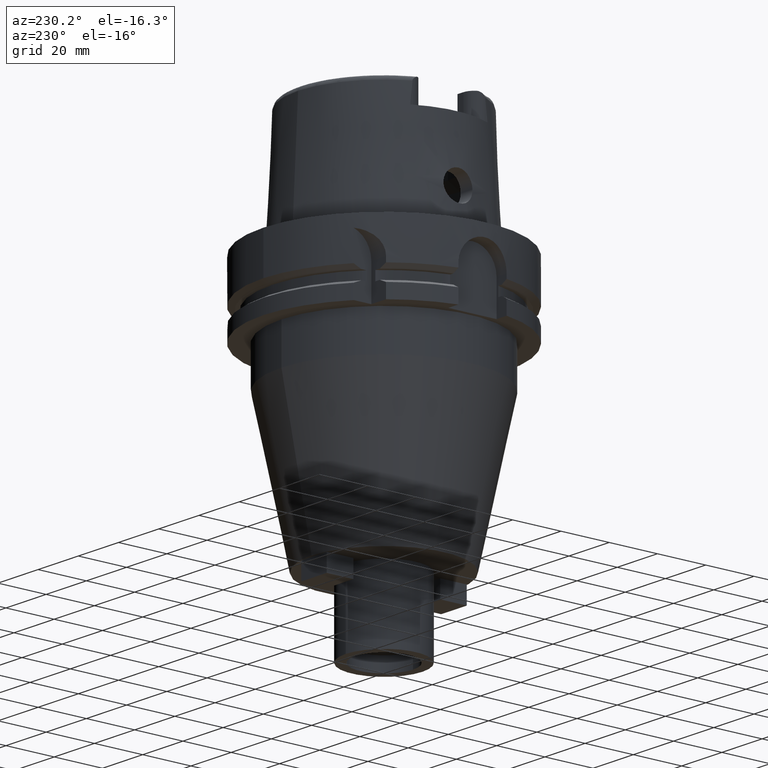
[diagram: clean part render]
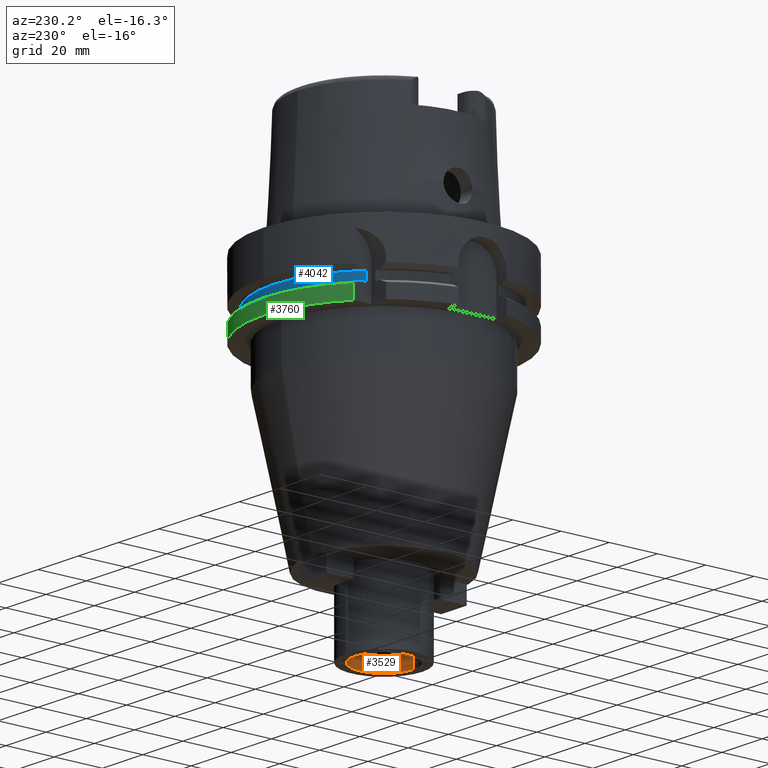
[diagram: same view with three faces highlighted in distinct colors, each labeled with its STEP entity id]
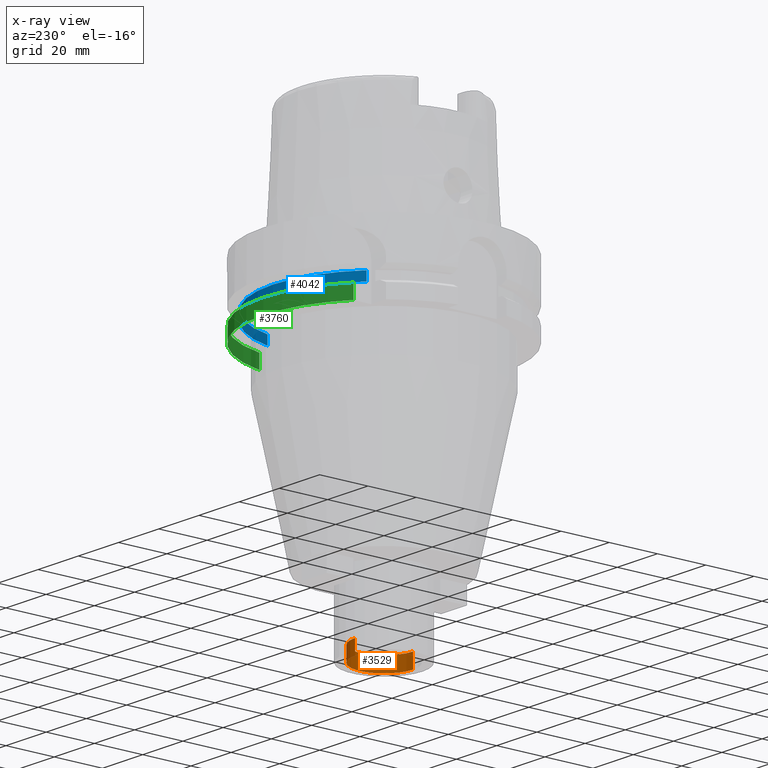
[diagram: x-ray of the same camera — body ghosted, the three highlighted faces saturated]
A machine part, auxiliary view with three faces highlighted in distinct colors.
The next image is the same camera in x-ray (body ghosted, the three faces saturated) — at least one of them is partly hidden behind the body in this view.
Their STEP definitions:

[orange] entity #3529 — the highlighted cylindrical surface (partial cylindrical patch) has radius 12 mm, axis along (0, 0, 1).
#1043=CARTESIAN_POINT('',(0.E0,0.E0,-1.29E2));
#1044=DIRECTION('',(0.E0,0.E0,1.E0));
#1045=DIRECTION('',(0.E0,-1.E0,0.E0));
#1046=AXIS2_PLACEMENT_3D('',#1043,#1044,#1045);
#1075=DIRECTION('',(0.E0,0.E0,1.E0));
#1076=VECTOR('',#1075,6.E0);
#1077=CARTESIAN_POINT('',(0.E0,1.2E1,-1.35E2));
#1078=LINE('',#1077,#1076);
#1082=DIRECTION('',(0.E0,0.E0,1.E0));
#1083=VECTOR('',#1082,6.E0);
#1084=CARTESIAN_POINT('',(0.E0,-1.2E1,-1.35E2));
#1085=LINE('',#1084,#1083);
#1113=CARTESIAN_POINT('',(0.E0,0.E0,-1.35E2));
#1114=DIRECTION('',(0.E0,0.E0,-1.E0));
#1115=DIRECTION('',(0.E0,1.E0,0.E0));
#1116=AXIS2_PLACEMENT_3D('',#1113,#1114,#1115);
#2556=CARTESIAN_POINT('',(0.E0,-1.2E1,-1.29E2));
#2557=CARTESIAN_POINT('',(0.E0,1.2E1,-1.29E2));
#2558=VERTEX_POINT('',#2556);
#2559=VERTEX_POINT('',#2557);
#2560=CARTESIAN_POINT('',(0.E0,1.2E1,-1.35E2));
#2561=VERTEX_POINT('',#2560);
#2562=CARTESIAN_POINT('',(0.E0,-1.2E1,-1.35E2));
#2563=VERTEX_POINT('',#2562);
#3515=CARTESIAN_POINT('',(0.E0,0.E0,-1.4425E2));
#3516=DIRECTION('',(0.E0,0.E0,1.E0));
#3517=DIRECTION('',(0.E0,1.E0,0.E0));
#3518=AXIS2_PLACEMENT_3D('',#3515,#3516,#3517);
#3519=CYLINDRICAL_SURFACE('',#3518,1.2E1);
#3521=ORIENTED_EDGE('',*,*,#3520,.T.);
#3522=ORIENTED_EDGE('',*,*,#3504,.F.);
#3524=ORIENTED_EDGE('',*,*,#3523,.F.);
#3526=ORIENTED_EDGE('',*,*,#3525,.F.);
#3527=EDGE_LOOP('',(#3521,#3522,#3524,#3526));
#3528=FACE_OUTER_BOUND('',#3527,.F.);
#1047=CIRCLE('',#1046,1.2E1);
#1117=CIRCLE('',#1116,1.2E1);
#3504=EDGE_CURVE('',#2558,#2559,#1047,.T.);
#3520=EDGE_CURVE('',#2561,#2559,#1078,.T.);
#3523=EDGE_CURVE('',#2563,#2558,#1085,.T.);
#3525=EDGE_CURVE('',#2561,#2563,#1117,.T.);
#3529=ADVANCED_FACE('',(#3528),#3519,.F.);

[blue] entity #4042 — the highlighted cylindrical surface (partial cylindrical patch) has radius 46 mm, axis along (0, 0, 1).
#1625=CARTESIAN_POINT('',(0.E0,0.E0,-1.8125E1));
#1626=DIRECTION('',(0.E0,0.E0,-1.E0));
#1627=DIRECTION('',(-6.847826086957E-1,7.287474039940E-1,0.E0));
#1628=AXIS2_PLACEMENT_3D('',#1625,#1626,#1627);
#1633=CARTESIAN_POINT('',(0.E0,0.E0,-1.8125E1));
#1634=DIRECTION('',(0.E0,0.E0,-1.E0));
#1635=DIRECTION('',(0.E0,1.E0,0.E0));
#1636=AXIS2_PLACEMENT_3D('',#1633,#1634,#1635);
#1664=DIRECTION('',(0.E0,0.E0,-1.E0));
#1665=VECTOR('',#1664,3.75E0);
#1666=CARTESIAN_POINT('',(-3.15E1,3.352238058372E1,-1.8125E1));
#1667=LINE('',#1666,#1665);
#1671=DIRECTION('',(0.E0,0.E0,1.E0));
#1672=VECTOR('',#1671,3.75E0);
#1673=CARTESIAN_POINT('',(4.466542286825E1,1.1E1,-2.1875E1));
#1674=LINE('',#1673,#1672);
#1701=CARTESIAN_POINT('',(0.E0,0.E0,-2.1875E1));
#1702=DIRECTION('',(0.E0,0.E0,1.E0));
#1703=DIRECTION('',(9.709874536577E-1,2.391304347826E-1,0.E0));
#1704=AXIS2_PLACEMENT_3D('',#1701,#1702,#1703);
#1709=CARTESIAN_POINT('',(0.E0,0.E0,-2.1875E1));
#1710=DIRECTION('',(0.E0,0.E0,1.E0));
#1711=DIRECTION('',(0.E0,1.E0,0.E0));
#1712=AXIS2_PLACEMENT_3D('',#1709,#1710,#1711);
#2629=CARTESIAN_POINT('',(-3.15E1,3.352238058372E1,-2.1875E1));
#2630=VERTEX_POINT('',#2629);
#2631=CARTESIAN_POINT('',(-3.15E1,3.352238058372E1,-1.8125E1));
#2632=VERTEX_POINT('',#2631);
#2693=CARTESIAN_POINT('',(4.466542286825E1,1.1E1,-2.1875E1));
#2694=VERTEX_POINT('',#2693);
#2695=CARTESIAN_POINT('',(6.348635329208E-14,4.6E1,-2.1875E1));
#2696=VERTEX_POINT('',#2695);
#2703=CARTESIAN_POINT('',(4.466542286825E1,1.1E1,-1.8125E1));
#2704=VERTEX_POINT('',#2703);
#2705=CARTESIAN_POINT('',(-1.953992523340E-14,4.6E1,-1.8125E1));
#2706=VERTEX_POINT('',#2705);
#4027=CARTESIAN_POINT('',(0.E0,0.E0,-1.4425E2));
#4028=DIRECTION('',(0.E0,0.E0,1.E0));
#4029=DIRECTION('',(0.E0,1.E0,0.E0));
#4030=AXIS2_PLACEMENT_3D('',#4027,#4028,#4029);
#4031=CYLINDRICAL_SURFACE('',#4030,4.6E1);
#4032=ORIENTED_EDGE('',*,*,#3729,.T.);
#4034=ORIENTED_EDGE('',*,*,#4033,.F.);
#4036=ORIENTED_EDGE('',*,*,#4035,.F.);
#4037=ORIENTED_EDGE('',*,*,#3777,.T.);
#4038=ORIENTED_EDGE('',*,*,#4019,.F.);
#4039=ORIENTED_EDGE('',*,*,#4017,.F.);
#4040=EDGE_LOOP('',(#4032,#4034,#4036,#4037,#4038,#4039));
#4041=FACE_OUTER_BOUND('',#4040,.F.);
#1629=CIRCLE('',#1628,4.6E1);
#1637=CIRCLE('',#1636,4.6E1);
#1705=CIRCLE('',#1704,4.6E1);
#1713=CIRCLE('',#1712,4.6E1);
#3729=EDGE_CURVE('',#2632,#2630,#1667,.T.);
#3777=EDGE_CURVE('',#2694,#2704,#1674,.T.);
#4017=EDGE_CURVE('',#2632,#2706,#1629,.T.);
#4019=EDGE_CURVE('',#2706,#2704,#1637,.T.);
#4033=EDGE_CURVE('',#2696,#2630,#1713,.T.);
#4035=EDGE_CURVE('',#2694,#2696,#1705,.T.);
#4042=ADVANCED_FACE('',(#4041),#4031,.T.);

[green] entity #3760 — the highlighted cylindrical surface (partial cylindrical patch) has radius 50 mm, axis along (0, 0, 1).
#1284=CARTESIAN_POINT('',(0.E0,0.E0,-2.9E1));
#1285=DIRECTION('',(0.E0,0.E0,1.E0));
#1286=DIRECTION('',(9.754998718606E-1,2.2E-1,0.E0));
#1287=AXIS2_PLACEMENT_3D('',#1284,#1285,#1286);
#1292=CARTESIAN_POINT('',(0.E0,0.E0,-2.9E1));
#1293=DIRECTION('',(0.E0,0.E0,1.E0));
#1294=DIRECTION('',(0.E0,1.E0,0.E0));
#1295=AXIS2_PLACEMENT_3D('',#1292,#1293,#1294);
#1348=DIRECTION('',(6.188494047475E-7,5.020316378014E-7,-9.999999999997E-1));
#1349=VECTOR('',#1348,5.752391791881E0);
#1350=CARTESIAN_POINT('',(-3.150000355986E1,3.882975374283E1,
-2.324760820812E1));
#1351=LINE('',#1350,#1349);
#1355=DIRECTION('',(-8.399427413532E-14,-2.068976605539E-14,1.E0));
#1356=VECTOR('',#1355,5.752404735809E0);
#1357=CARTESIAN_POINT('',(4.877499359303E1,1.1E1,-2.9E1));
#1358=LINE('',#1357,#1356);
#1727=CARTESIAN_POINT('',(0.E0,0.E0,-2.324759526419E1));
#1728=DIRECTION('',(0.E0,0.E0,-1.E0));
#1729=DIRECTION('',(-6.3E-1,7.765951326142E-1,0.E0));
#1730=AXIS2_PLACEMENT_3D('',#1727,#1728,#1729);
#1735=CARTESIAN_POINT('',(0.E0,0.E0,-2.324759526419E1));
#1736=DIRECTION('',(0.E0,0.E0,-1.E0));
#1737=DIRECTION('',(0.E0,1.E0,0.E0));
#1738=AXIS2_PLACEMENT_3D('',#1735,#1736,#1737);
#2601=CARTESIAN_POINT('',(-3.15E1,3.882975663071E1,-2.9E1));
#2603=VERTEX_POINT('',#2601);
#2622=CARTESIAN_POINT('',(4.877499359303E1,1.1E1,-2.9E1));
#2623=VERTEX_POINT('',#2622);
#2624=CARTESIAN_POINT('',(-6.019535474874E-14,5.E1,-2.9E1));
#2625=VERTEX_POINT('',#2624);
#2626=CARTESIAN_POINT('',(-3.150000355986E1,3.882975374283E1,
-2.324760820812E1));
#2627=VERTEX_POINT('',#2626);
#2646=CARTESIAN_POINT('',(4.877499359303E1,1.1E1,-2.324759526419E1));
#2647=VERTEX_POINT('',#2646);
#2648=CARTESIAN_POINT('',(0.E0,5.E1,-2.324759526419E1));
#2649=VERTEX_POINT('',#2648);
#3744=CARTESIAN_POINT('',(0.E0,0.E0,-1.4425E2));
#3745=DIRECTION('',(0.E0,0.E0,1.E0));
#3746=DIRECTION('',(0.E0,1.E0,0.E0));
#3747=AXIS2_PLACEMENT_3D('',#3744,#3745,#3746);
#3748=CYLINDRICAL_SURFACE('',#3747,5.E1);
#3749=ORIENTED_EDGE('',*,*,#3723,.T.);
#3750=ORIENTED_EDGE('',*,*,#3708,.F.);
#3751=ORIENTED_EDGE('',*,*,#3706,.F.);
#3753=ORIENTED_EDGE('',*,*,#3752,.T.);
#3755=ORIENTED_EDGE('',*,*,#3754,.F.);
#3757=ORIENTED_EDGE('',*,*,#3756,.F.);
#3758=EDGE_LOOP('',(#3749,#3750,#3751,#3753,#3755,#3757));
#3759=FACE_OUTER_BOUND('',#3758,.F.);
#1288=CIRCLE('',#1287,5.E1);
#1296=CIRCLE('',#1295,5.E1);
#1731=CIRCLE('',#1730,5.E1);
#1739=CIRCLE('',#1738,5.E1);
#3706=EDGE_CURVE('',#2623,#2625,#1288,.T.);
#3708=EDGE_CURVE('',#2625,#2603,#1296,.T.);
#3723=EDGE_CURVE('',#2627,#2603,#1351,.T.);
#3752=EDGE_CURVE('',#2623,#2647,#1358,.T.);
#3754=EDGE_CURVE('',#2649,#2647,#1739,.T.);
#3756=EDGE_CURVE('',#2627,#2649,#1731,.T.);
#3760=ADVANCED_FACE('',(#3759),#3748,.T.);